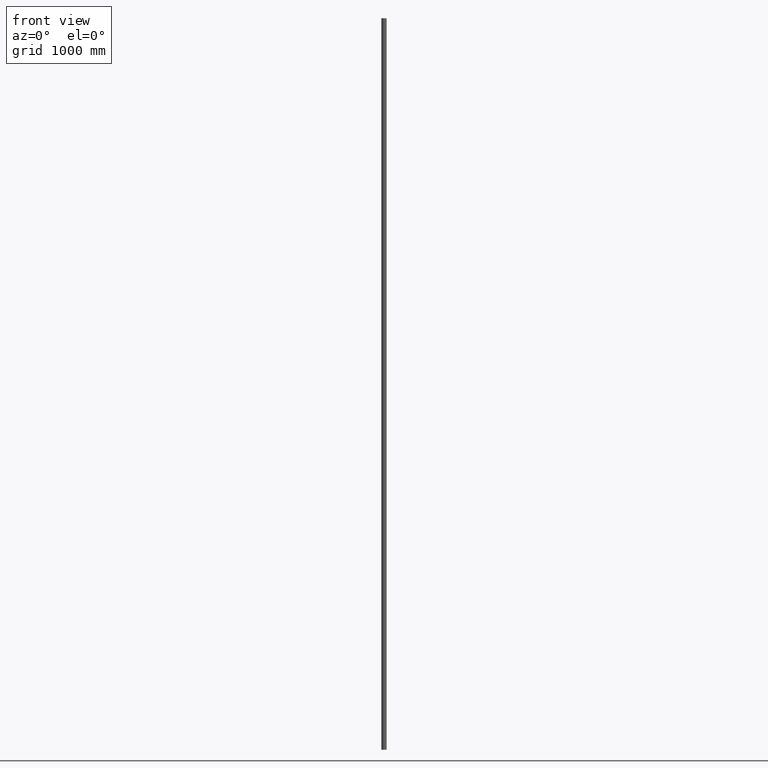
[diagram: clean part render]
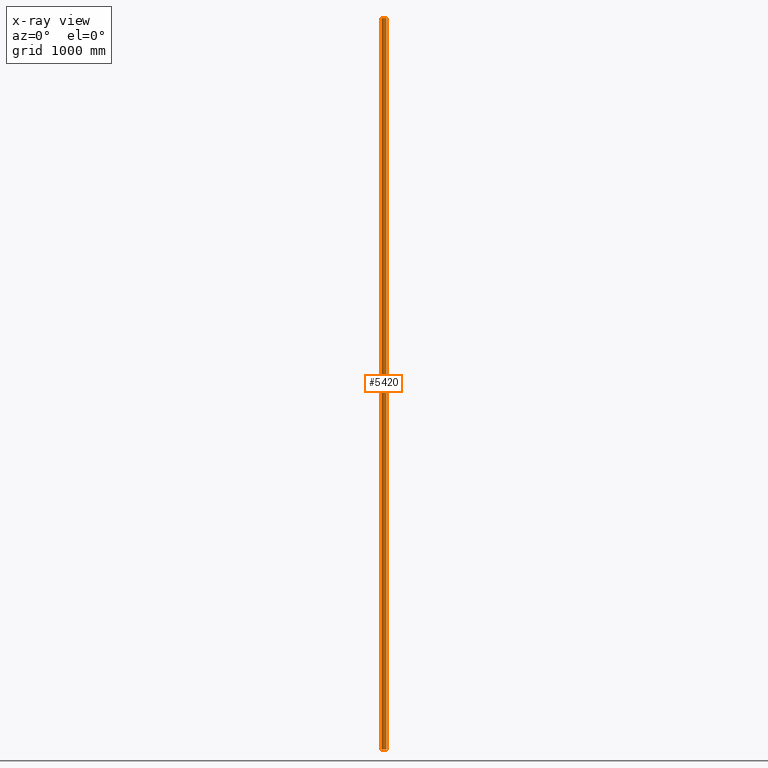
[diagram: x-ray — body ghosted, one internal face saturated and labeled with its STEP entity id]
A machine part, front view, then the same camera in x-ray: the body is ghosted and one INTERNAL B-rep face — a face not visible from any outside direction — is saturated and labeled: STEP entity #5420.
In plain terms, the highlighted cylindrical surface (bore or boss wall) has radius 21.2 mm, axis along (-0, -0, -1).
Its self-contained STEP definition (entity closure, byte-faithful):
#475 = DIRECTION ( 'NONE',  ( -0.000000000000000000, -0.000000000000000000, -1.000000000000000000 ) ) ;
#815 = VERTEX_POINT ( 'NONE', #2151 ) ;
#1677 = DIRECTION ( 'NONE',  ( 1.000000000000000000, 0.000000000000000000, 0.000000000000000000 ) ) ;
#2151 = CARTESIAN_POINT ( 'NONE',  ( 21.19999999999999929, 0.000000000000000000, -3000.000000000000000 ) ) ;
#2387 = CARTESIAN_POINT ( 'NONE',  ( 0.000000000000000000, 0.000000000000000000, 3000.000000000000000 ) ) ;
#2398 = FACE_OUTER_BOUND ( 'NONE', #8773, .T. ) ;
#3341 = AXIS2_PLACEMENT_3D ( 'NONE', #2387, #475, #10200 ) ;
#3450 = DIRECTION ( 'NONE',  ( 0.000000000000000000, 0.000000000000000000, 1.000000000000000000 ) ) ;
#4164 = AXIS2_PLACEMENT_3D ( 'NONE', #8322, #3450, #1677 ) ;
#5372 = EDGE_CURVE ( 'NONE', #815, #815, #10552, .T. ) ;
#5420 = ADVANCED_FACE ( 'NONE', ( #10103, #2398 ), #11453, .T. ) ;
#5932 = CARTESIAN_POINT ( 'NONE',  ( 21.19999999999999929, 0.000000000000000000, 3000.000000000000000 ) ) ;
#6229 = ORIENTED_EDGE ( 'NONE', *, *, #9822, .F. ) ;
#8322 = CARTESIAN_POINT ( 'NONE',  ( 0.000000000000000000, 0.000000000000000000, -3000.000000000000000 ) ) ;
#8773 = EDGE_LOOP ( 'NONE', ( #9281 ) ) ;
#9233 = DIRECTION ( 'NONE',  ( 0.000000000000000000, 0.000000000000000000, 1.000000000000000000 ) ) ;
#9281 = ORIENTED_EDGE ( 'NONE', *, *, #5372, .T. ) ;
#9364 = CARTESIAN_POINT ( 'NONE',  ( 0.000000000000000000, 0.000000000000000000, 3000.000000000000000 ) ) ;
#9416 = EDGE_LOOP ( 'NONE', ( #6229 ) ) ;
#9774 = AXIS2_PLACEMENT_3D ( 'NONE', #9364, #9233, #12155 ) ;
#9822 = EDGE_CURVE ( 'NONE', #11077, #11077, #11530, .T. ) ;
#10103 = FACE_OUTER_BOUND ( 'NONE', #9416, .T. ) ;
#10200 = DIRECTION ( 'NONE',  ( -1.000000000000000000, 0.000000000000000000, 0.000000000000000000 ) ) ;
#10552 = CIRCLE ( 'NONE', #4164, 21.19999999999999929 ) ;
#11077 = VERTEX_POINT ( 'NONE', #5932 ) ;
#11453 = CYLINDRICAL_SURFACE ( 'NONE', #3341, 21.19999999999999929 ) ;
#11530 = CIRCLE ( 'NONE', #9774, 21.19999999999999929 ) ;
#12155 = DIRECTION ( 'NONE',  ( 1.000000000000000000, 0.000000000000000000, 0.000000000000000000 ) ) ;